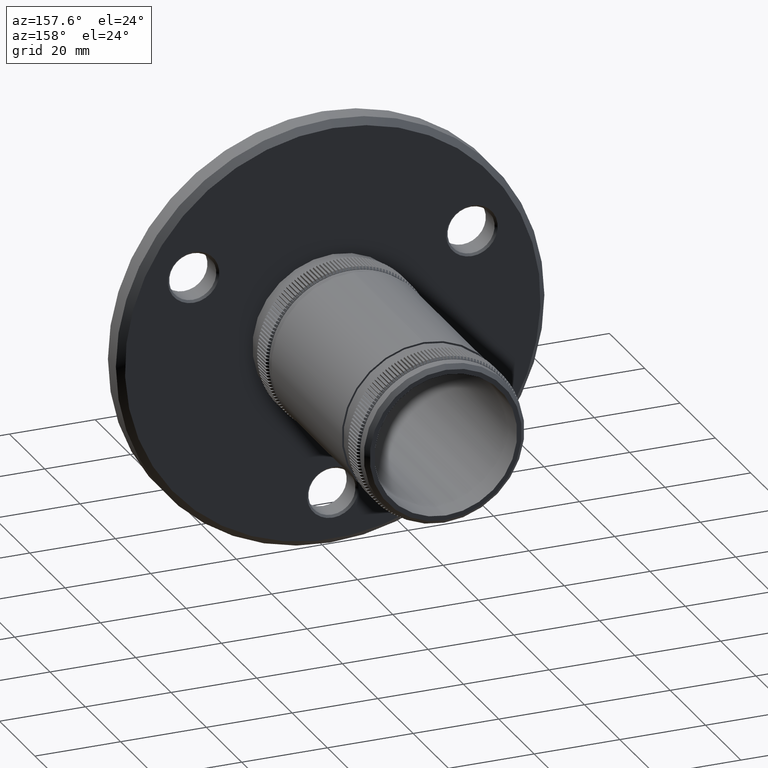
[diagram: clean part render]
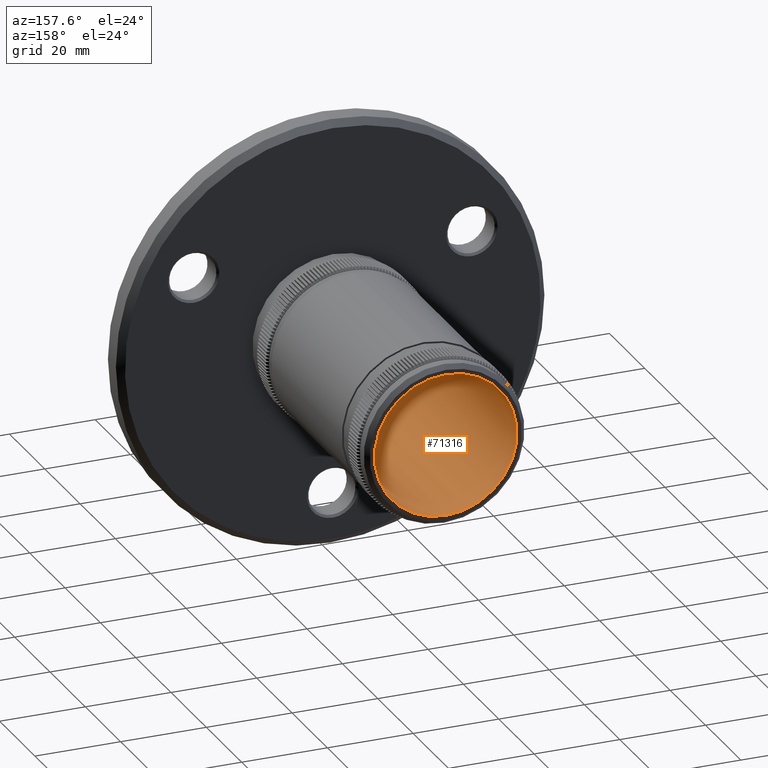
[diagram: same view with one face highlighted and labeled with its STEP entity id]
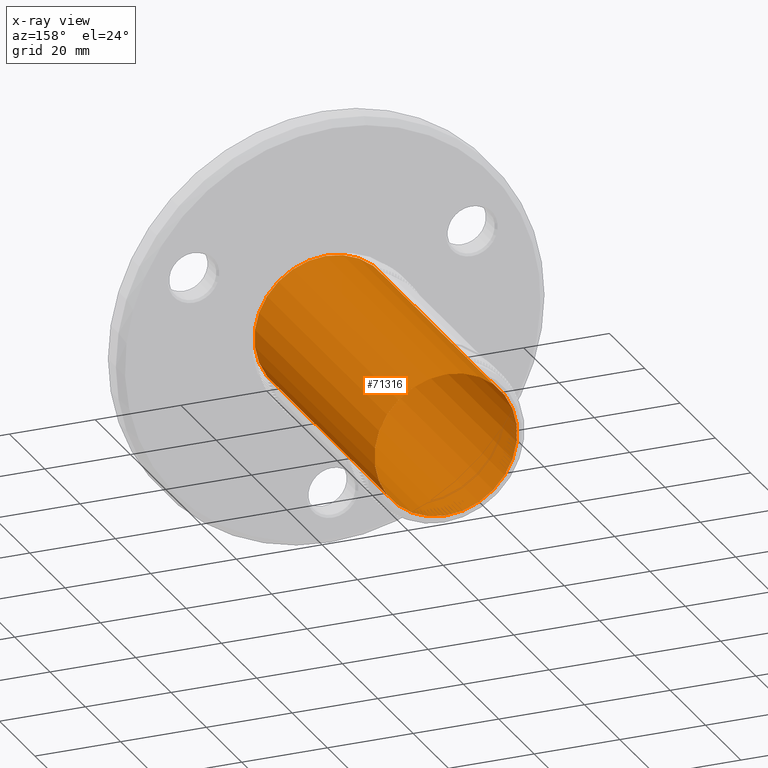
[diagram: x-ray of the same camera — body ghosted, the highlighted face saturated]
A machine part, auxiliary view. The second image highlights one B-rep face of the part: STEP entity #71316.
The next image is the same camera in x-ray: the body ghosted, the highlighted face saturated — about 0% of this face is hidden behind the body in this view.
In plain terms, the highlighted cylindrical surface (bore or boss wall) has radius 16.65 mm, axis along (-0, -1, -0).
Its self-contained STEP definition (entity closure, byte-faithful):
#7472 = VERTEX_POINT ( 'NONE', #60241 ) ;
#18993 = CIRCLE ( 'NONE', #65271, 16.64999999999999900 ) ;
#20406 = DIRECTION ( 'NONE',  ( 0.0000000000000000000, -1.000000000000000000, 0.0000000000000000000 ) ) ;
#24221 = CIRCLE ( 'NONE', #29161, 16.64999999999999900 ) ;
#28907 = EDGE_LOOP ( 'NONE', ( #69863 ) ) ;
#29161 = AXIS2_PLACEMENT_3D ( 'NONE', #81508, #75351, #47240 ) ;
#29885 = EDGE_CURVE ( 'NONE', #32799, #32799, #24221, .T. ) ;
#32799 = VERTEX_POINT ( 'NONE', #52276 ) ;
#34934 = CARTESIAN_POINT ( 'NONE',  ( 0.0000000000000000000, 68.00000000000000000, 0.0000000000000000000 ) ) ;
#36222 = ORIENTED_EDGE ( 'NONE', *, *, #29885, .T. ) ;
#36876 = FACE_OUTER_BOUND ( 'NONE', #28907, .T. ) ;
#40763 = CARTESIAN_POINT ( 'NONE',  ( 0.0000000000000000000, 68.00000000000000000, 0.0000000000000000000 ) ) ;
#41985 = DIRECTION ( 'NONE',  ( 0.0000000000000000000, 0.0000000000000000000, -1.000000000000000000 ) ) ;
#42710 = AXIS2_PLACEMENT_3D ( 'NONE', #40763, #69478, #83649 ) ;
#45294 = EDGE_LOOP ( 'NONE', ( #36222 ) ) ;
#47240 = DIRECTION ( 'NONE',  ( 0.0000000000000000000, 0.0000000000000000000, -1.000000000000000000 ) ) ;
#52276 = CARTESIAN_POINT ( 'NONE',  ( 0.0000000000000000000, 0.0000000000000000000, -16.64999999999999900 ) ) ;
#54577 = CYLINDRICAL_SURFACE ( 'NONE', #42710, 16.64999999999999900 ) ;
#60241 = CARTESIAN_POINT ( 'NONE',  ( 0.0000000000000000000, 68.00000000000000000, -16.64999999999999900 ) ) ;
#65271 = AXIS2_PLACEMENT_3D ( 'NONE', #34934, #20406, #41985 ) ;
#69478 = DIRECTION ( 'NONE',  ( -0.0000000000000000000, -1.000000000000000000, -0.0000000000000000000 ) ) ;
#69863 = ORIENTED_EDGE ( 'NONE', *, *, #73305, .F. ) ;
#71316 = ADVANCED_FACE ( 'NONE', ( #36876, #85546 ), #54577, .F. ) ;
#73305 = EDGE_CURVE ( 'NONE', #7472, #7472, #18993, .T. ) ;
#75351 = DIRECTION ( 'NONE',  ( 0.0000000000000000000, -1.000000000000000000, 0.0000000000000000000 ) ) ;
#81508 = CARTESIAN_POINT ( 'NONE',  ( 0.0000000000000000000, 0.0000000000000000000, 0.0000000000000000000 ) ) ;
#83649 = DIRECTION ( 'NONE',  ( 0.0000000000000000000, 0.0000000000000000000, -1.000000000000000000 ) ) ;
#85546 = FACE_OUTER_BOUND ( 'NONE', #45294, .T. ) ;